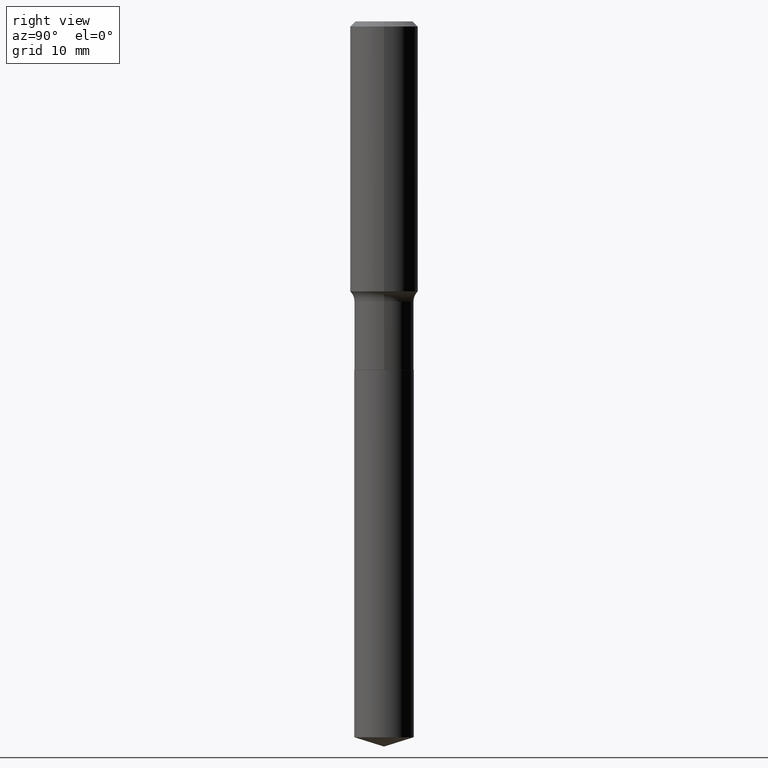
[diagram: clean part render]
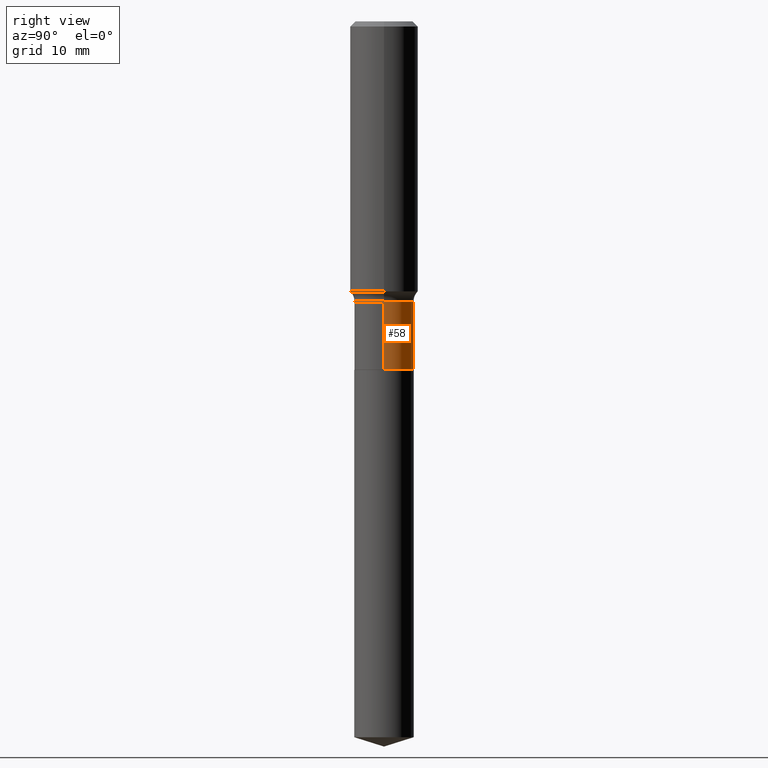
[diagram: same view with one face highlighted and labeled with its STEP entity id]
A machine part, right view. The second image highlights one B-rep face of the part: STEP entity #58.
In plain terms, the highlighted cylindrical surface (edge-blend (fillet) strip) has radius 4.1669 mm, axis along (-0, 0, 1).
Its self-contained STEP definition (entity closure, byte-faithful):
#21 = DIRECTION ( 'NONE',  ( -2.445468806185136597E-29, 3.491481338843145583E-15, 1.000000000000000000 ) ) ;
#36 = DIRECTION ( 'NONE',  ( -2.445468806185136597E-29, 3.491481338843145583E-15, 1.000000000000000000 ) ) ;
#58 = ADVANCED_FACE ( 'NONE', ( #487 ), #151, .T. ) ;
#99 = DIRECTION ( 'NONE',  ( -2.445468806185136597E-29, 3.491481338843145583E-15, 1.000000000000000000 ) ) ;
#102 = CARTESIAN_POINT ( 'NONE',  ( -0.1640500000000000014, 1.165645358014444365E-15, -8.069513015563172164E-30 ) ) ;
#109 = LINE ( 'NONE', #263, #428 ) ;
#115 = EDGE_CURVE ( 'NONE', #144, #286, #109, .T. ) ;
#144 = VERTEX_POINT ( 'NONE', #457 ) ;
#151 = CYLINDRICAL_SURFACE ( 'NONE', #462, 0.1640500000000000014 ) ;
#161 = VECTOR ( 'NONE', #431, 39.37007874015748143 ) ;
#171 = CARTESIAN_POINT ( 'NONE',  ( 4.698723764204121011E-29, -6.708532244453218971E-15, -1.921399999999999997 ) ) ;
#184 = CARTESIAN_POINT ( 'NONE',  ( 0.000000000000000000, 0.000000000000000000, 0.000000000000000000 ) ) ;
#193 = DIRECTION ( 'NONE',  ( 1.000000000000000000, -6.982962677686266711E-15, 4.876176775795935232E-29 ) ) ;
#234 = CARTESIAN_POINT ( 'NONE',  ( -0.1640499999999999459, -4.885091802200726621E-15, -1.544599999999999973 ) ) ;
#255 = DIRECTION ( 'NONE',  ( 1.000000000000000000, -6.982962677686266711E-15, 0.000000000000000000 ) ) ;
#259 = ORIENTED_EDGE ( 'NONE', *, *, #381, .T. ) ;
#263 = CARTESIAN_POINT ( 'NONE',  ( 0.1640500000000000014, -1.145555027274432057E-15, 7.999368000693231542E-30 ) ) ;
#286 = VERTEX_POINT ( 'NONE', #384 ) ;
#287 = CIRCLE ( 'NONE', #368, 0.1640499999999999459 ) ;
#289 = VERTEX_POINT ( 'NONE', #426 ) ;
#309 = DIRECTION ( 'NONE',  ( -2.445468806185136877E-29, 3.491481338843145188E-15, 1.000000000000000000 ) ) ;
#329 = EDGE_CURVE ( 'NONE', #144, #289, #345, .T. ) ;
#333 = EDGE_CURVE ( 'NONE', #286, #491, #287, .T. ) ;
#345 = CIRCLE ( 'NONE', #401, 0.1640500000000000014 ) ;
#353 = ORIENTED_EDGE ( 'NONE', *, *, #333, .F. ) ;
#358 = ORIENTED_EDGE ( 'NONE', *, *, #329, .T. ) ;
#368 = AXIS2_PLACEMENT_3D ( 'NONE', #439, #99, #255 ) ;
#381 = EDGE_CURVE ( 'NONE', #289, #491, #432, .T. ) ;
#384 = CARTESIAN_POINT ( 'NONE',  ( 0.1640499999999999459, -6.538497103251554269E-15, -1.544599999999999973 ) ) ;
#401 = AXIS2_PLACEMENT_3D ( 'NONE', #171, #21, #467 ) ;
#426 = CARTESIAN_POINT ( 'NONE',  ( -0.1640500000000000014, -4.885091802200726621E-15, -1.921399999999999997 ) ) ;
#428 = VECTOR ( 'NONE', #309, 39.37007874015748143 ) ;
#431 = DIRECTION ( 'NONE',  ( -2.445468806185136877E-29, 3.491481338843145188E-15, 1.000000000000000000 ) ) ;
#432 = LINE ( 'NONE', #102, #161 ) ;
#438 = ORIENTED_EDGE ( 'NONE', *, *, #115, .F. ) ;
#439 = CARTESIAN_POINT ( 'NONE',  ( 3.777271118033562272E-29, -5.392942075977122606E-15, -1.544599999999999973 ) ) ;
#440 = EDGE_LOOP ( 'NONE', ( #358, #259, #353, #438 ) ) ;
#457 = CARTESIAN_POINT ( 'NONE',  ( 0.1640500000000000014, -7.854087271727651423E-15, -1.921399999999999997 ) ) ;
#462 = AXIS2_PLACEMENT_3D ( 'NONE', #184, #36, #193 ) ;
#467 = DIRECTION ( 'NONE',  ( 1.000000000000000000, -6.982962677686264344E-15, 0.000000000000000000 ) ) ;
#487 = FACE_OUTER_BOUND ( 'NONE', #440, .T. ) ;
#491 = VERTEX_POINT ( 'NONE', #234 ) ;